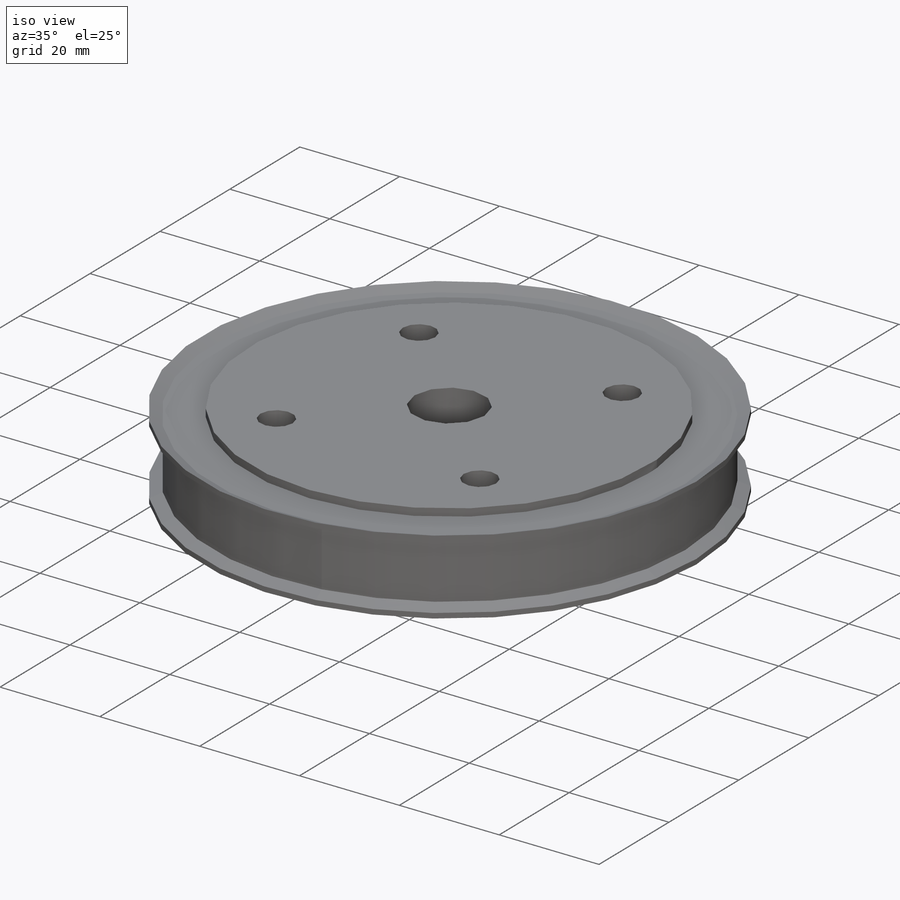
[diagram: iso view]
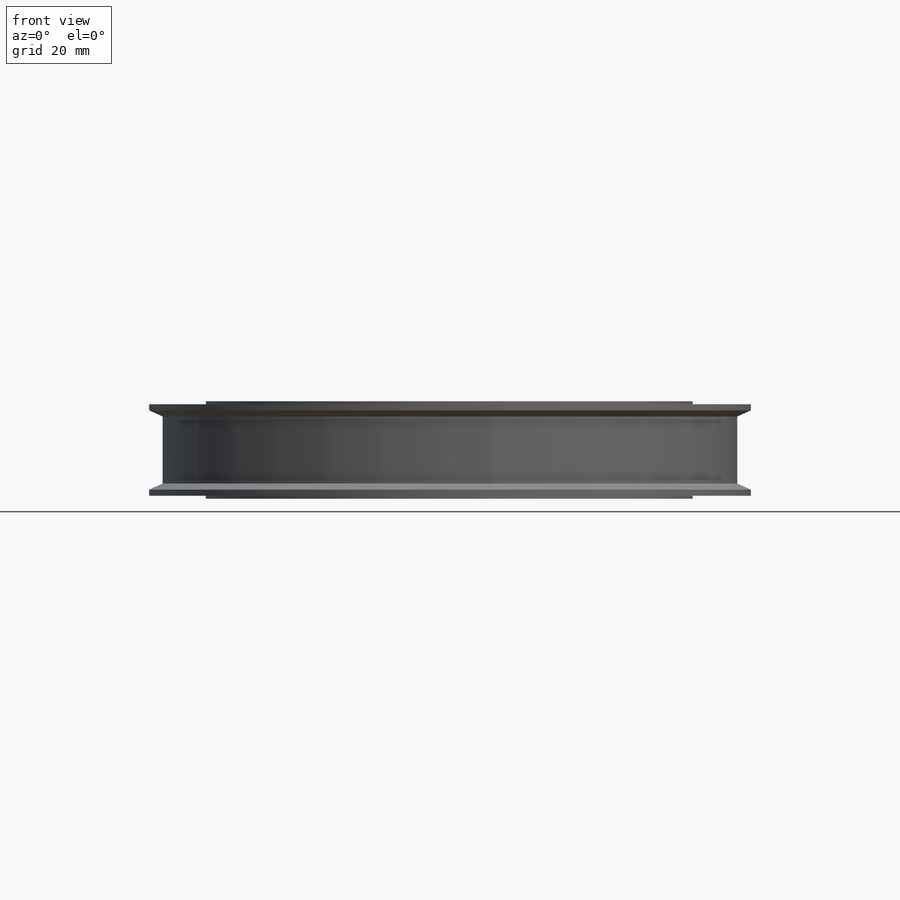
[diagram: front view]
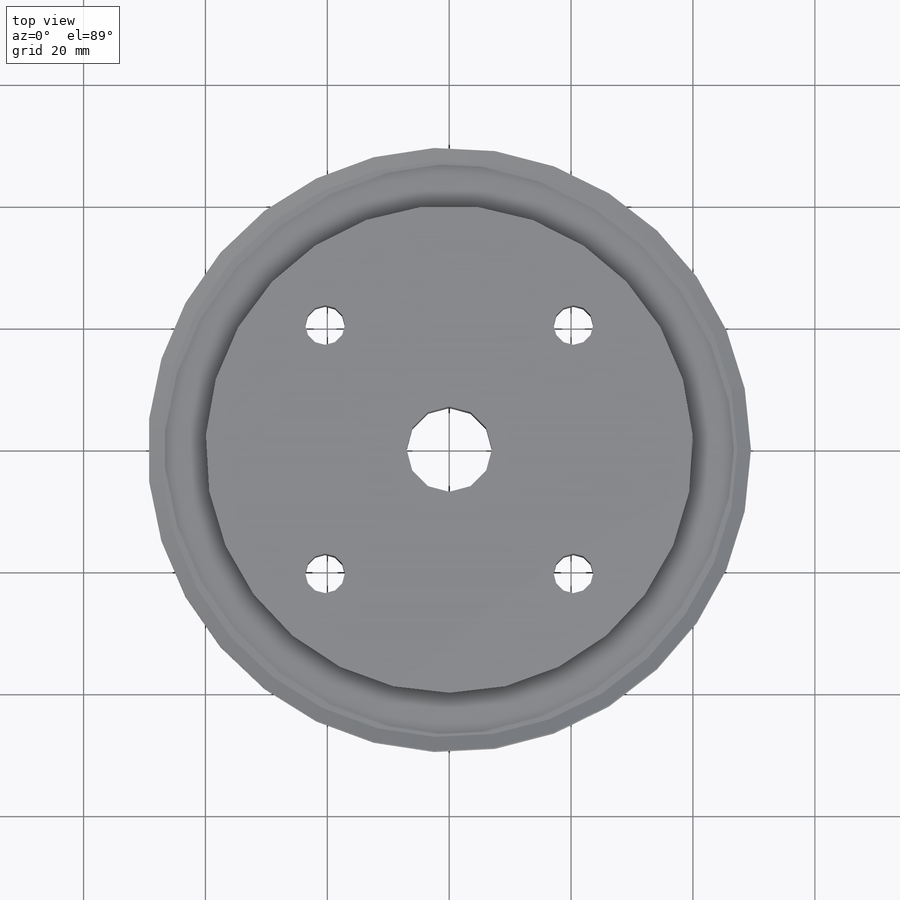
[diagram: top view]
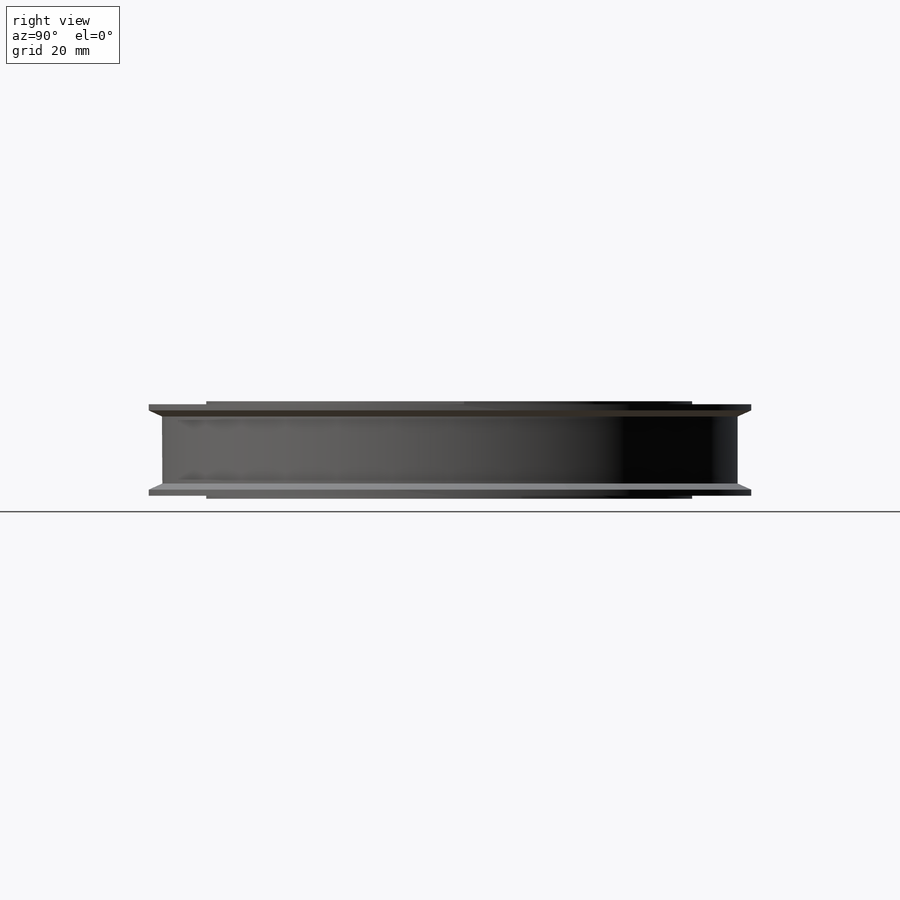
[diagram: right view]
SOLIDWORKS PART (.sldprt)
format: sldprt  version: not decoded by parser v0  size: 268,288 bytes
history: native  units: mm
features: plane x4, sketch x4, revolve x2, material x1, mirror x1, hole x1 (+10 scaffold rows collapsed)
feature tree (23):
  scaffold x10  (default folders/planes/origin — collapsed)
  material  "6061 合金"
  plane  "前基準面"
  plane  "上基準面"
  plane  "右基準面"
  sketch  "草圖1"  dims[c1.D1=14.0mm c1.D2=7.5mm c1.D3=36.29mm c1.D4=1.65mm c1.D5=14.0mm c1.D6=1.65mm c1.D7=17.5mm c1.D8=21.0mm c1.D9=6.0mm c1.D10=8.5mm c1.D11=8.5mm c1.D12=1.0mm c1.D13=1.0mm c1.D14=1.0mm c2.D1=17.5mm c2.D4=29.29mm c3.D1=1.65mm c3.D4=1.65mm c3.D5=17.0mm c3.D6=41.5mm c3.D7=41.5mm c3.D8=~3.520288mm c3.D2=14.0mm c3.D3=94.53mm c4.D6=30.0mm c4.D4=15.0mm c4.D7=5.0mm c4.D1=9.0mm c4.D5=2.0mm c4.D8=2.5mm c4.D9=35.0mm c4.D10=3.5mm c5.D1=9.0mm c5.D6=2.0mm c5.D7=30.0mm c5.D8=2.0mm c5.D10=15.7mm c5.D11=1.15mm c5.D12=2.5mm c6.D6=11.0mm c6.D7=80.0mm c6.D12=0.5mm c6.D8=16.0mm c6.D9=5.0mm c7.D12=95.49mm c7.D5=5.0mm c7.D9=33.0mm c7.D13=4.0mm c7.D14=3.0mm c7.D15=7.265mm c7.D11=3.0mm c7.D16=1.15mm]
  revolve  "旋轉1"  Angle=360deg
  sketch  "草圖7"  dims[c1.D1=32.0mm c1.D2=1.0mm c1.D3=1.0mm c2.D1=99.0mm c2.D2=1.0mm c2.D3=1.0mm]
  revolve  "旋轉2"  Angle=360deg
  mirror  "鏡射1"
  plane  "平面1"
  hole  "Ø6.5 (6.5) 直徑孔1"  [1 undecoded]
  sketch  "草圖10"  dims[c1.D1=55.0mm c1.D2=~26.618473mm c2.D2=45.0deg c2.D1=40.75mm c2.D3=4.0]
  sketch  "草圖9"  dims[hole-wizard template sketch: 59 standard entries collapsed; hole parameters kept: c18.貫穿孔直徑=6.5mm c18.貫穿孔深度=16.0mm]
decode coverage: 6 of 8 modeling features carry decoded parameters
note: ~ marks probable driven/reference dimensions
note: 1 parameter value undecoded
note: suppression state not decoded; provenance and decode notes live in map.json
